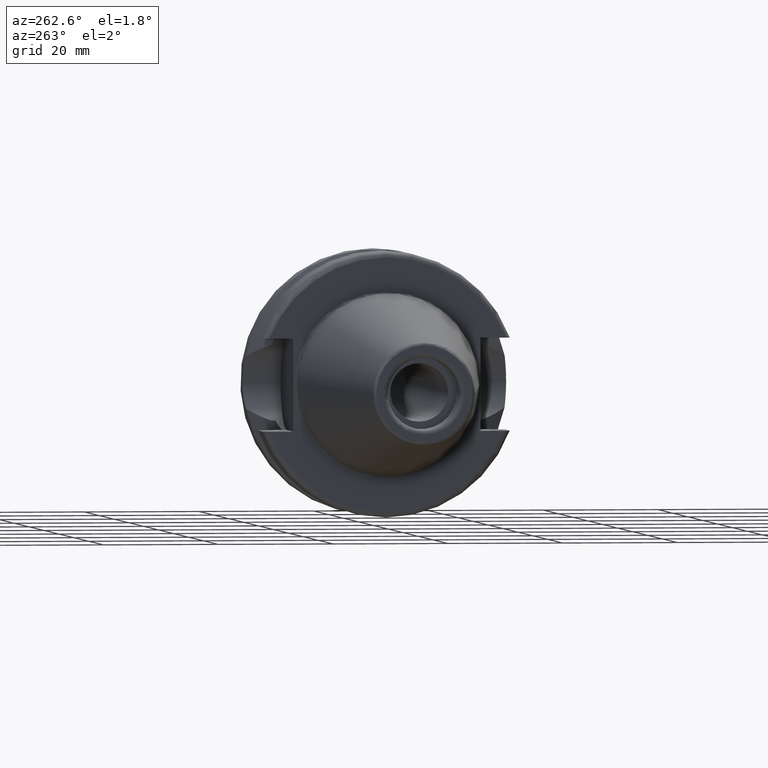
[diagram: clean part render]
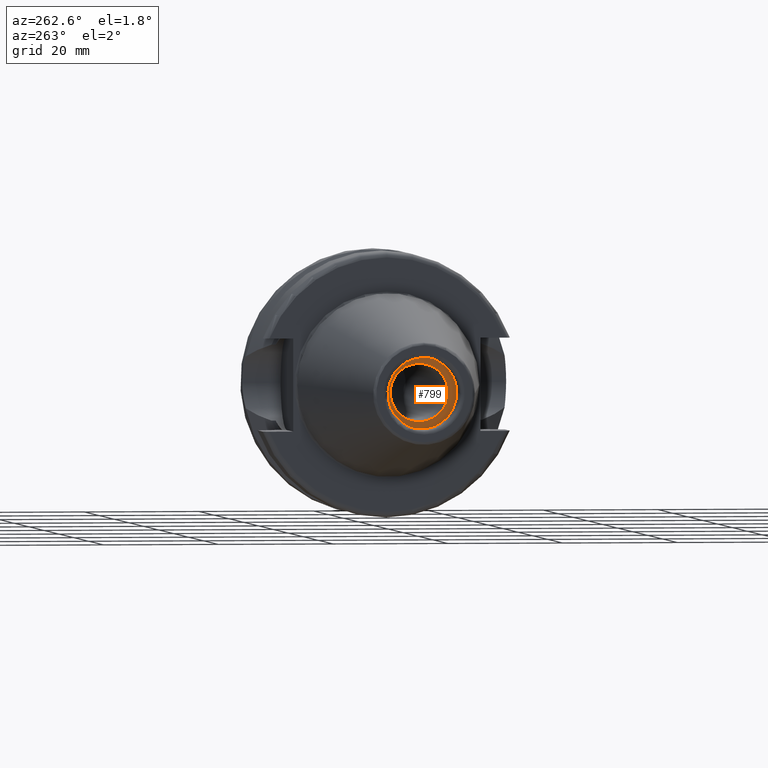
[diagram: same view with one face highlighted and labeled with its STEP entity id]
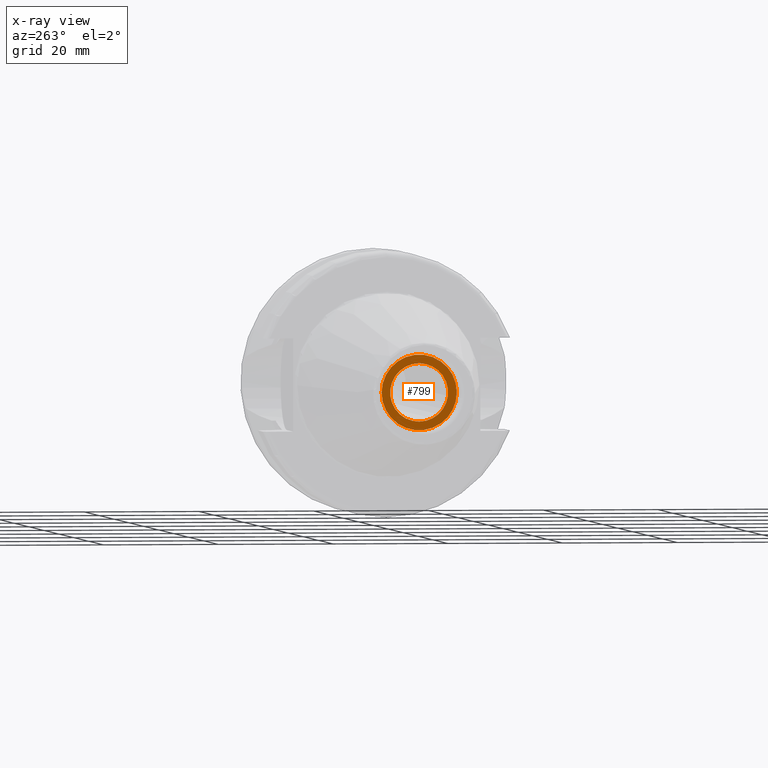
[diagram: x-ray of the same camera — body ghosted, the highlighted face saturated]
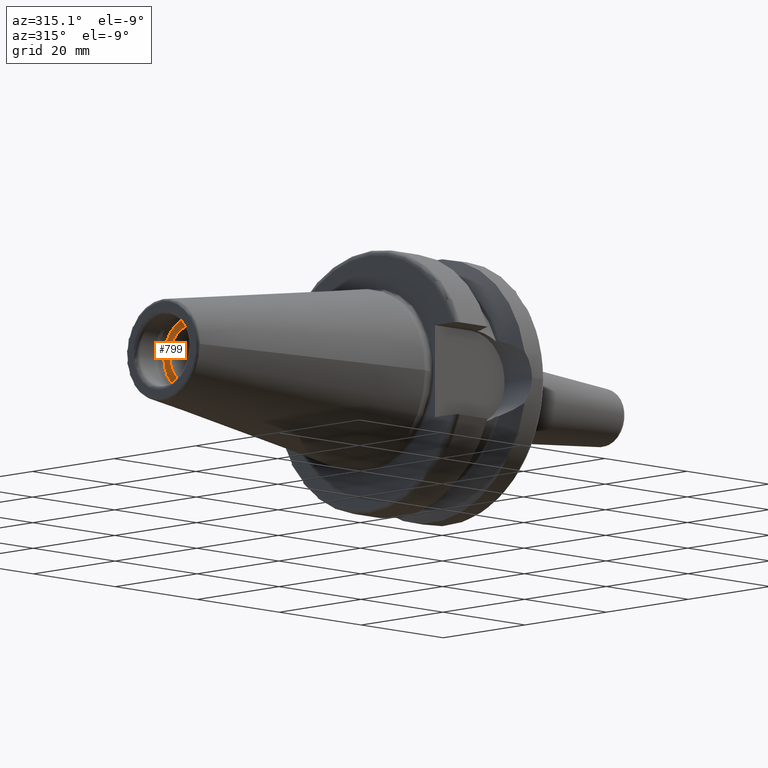
[diagram: same view with one face highlighted and labeled with its STEP entity id]
A machine part, auxiliary view. The second image highlights one B-rep face of the part: STEP entity #799.
The next image is the same camera in x-ray: the body ghosted, the highlighted face saturated — about 0% of this face is hidden behind the body in this view.
A second angle (auxiliary view) of the same face is appended — the face is thin or edge-on in the first view.
In plain terms, the highlighted planar face has unit normal (-1, -0, 0).
Its self-contained STEP definition (entity closure, byte-faithful):
#142=FACE_BOUND('',#251,.T.);
#157=PLANE('',#919);
#200=FACE_OUTER_BOUND('',#250,.T.);
#250=EDGE_LOOP('',(#727));
#251=EDGE_LOOP('',(#728));
#276=CIRCLE('',#857,5.053);
#308=CIRCLE('',#920,6.55);
#330=VERTEX_POINT('',#1231);
#386=VERTEX_POINT('',#1519);
#415=EDGE_CURVE('',#330,#330,#276,.T.);
#501=EDGE_CURVE('',#386,#386,#308,.T.);
#727=ORIENTED_EDGE('',*,*,#501,.F.);
#728=ORIENTED_EDGE('',*,*,#415,.T.);
#799=ADVANCED_FACE('',(#200,#142),#157,.T.);
#857=AXIS2_PLACEMENT_3D('',#1232,#997,#998);
#919=AXIS2_PLACEMENT_3D('',#1518,#1152,#1153);
#920=AXIS2_PLACEMENT_3D('',#1520,#1154,#1155);
#997=DIRECTION('center_axis',(1.,1.62798202122572E-21,0.));
#998=DIRECTION('ref_axis',(0.,0.,1.));
#1152=DIRECTION('center_axis',(-1.,-1.62798202122572E-21,0.));
#1153=DIRECTION('ref_axis',(0.,0.,1.));
#1154=DIRECTION('center_axis',(1.,1.62798202122572E-21,0.));
#1155=DIRECTION('ref_axis',(0.,0.,-1.));
#1231=CARTESIAN_POINT('',(-41.4,2.70048219878133E-15,-5.053));
#1232=CARTESIAN_POINT('Origin',(-41.4,2.08166817117217E-15,0.));
#1518=CARTESIAN_POINT('Origin',(-41.4,6.55,0.));
#1519=CARTESIAN_POINT('',(-41.4,-6.55,-8.02143653441516E-16));
#1520=CARTESIAN_POINT('Origin',(-41.4,2.08166817117217E-15,0.));